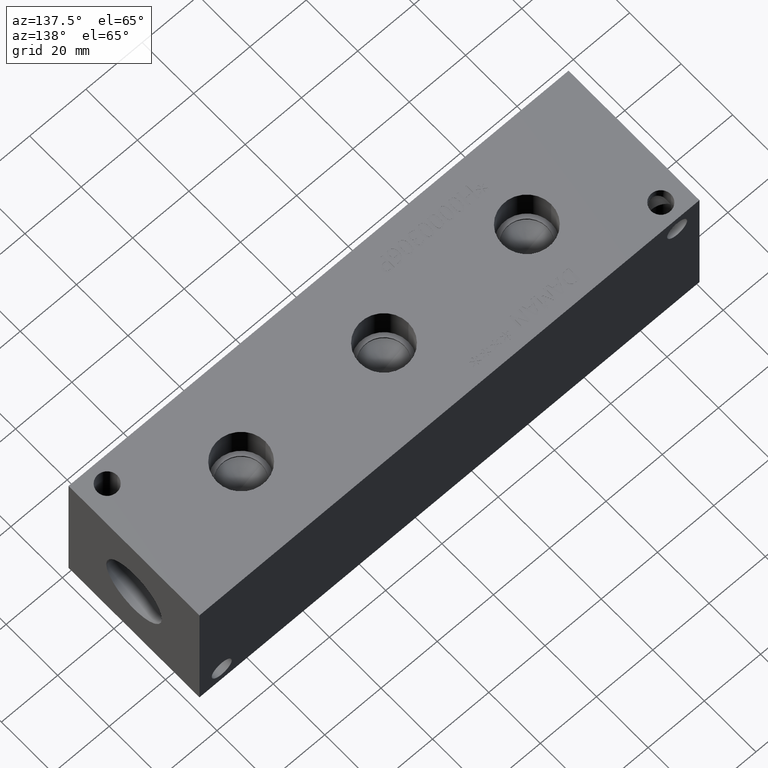
[diagram: clean part render]
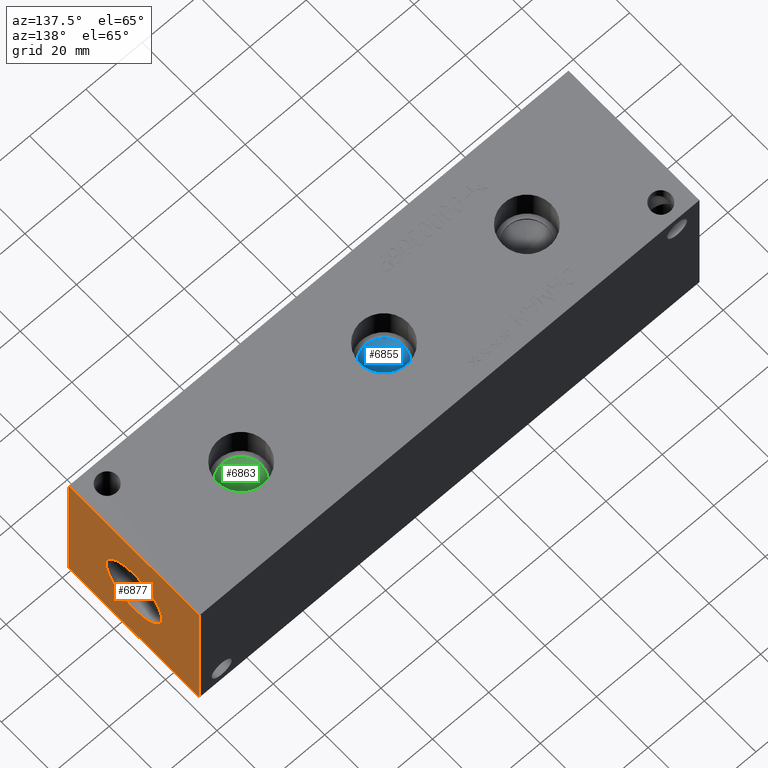
[diagram: same view with three faces highlighted in distinct colors, each labeled with its STEP entity id]
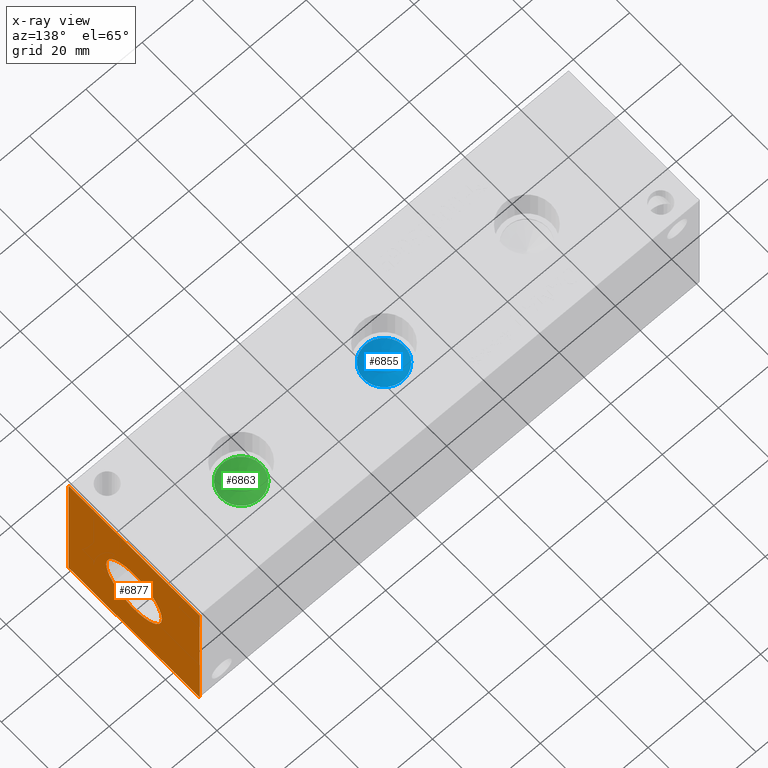
[diagram: x-ray of the same camera — body ghosted, the three highlighted faces saturated]
A machine part, auxiliary view with three faces highlighted in distinct colors.
The next image is the same camera in x-ray (body ghosted, the three faces saturated) — at least one of them is partly hidden behind the body in this view.
Their STEP definitions:

[orange] entity #6877 — the highlighted planar face has unit normal (1, 0, 0).
#83=CIRCLE('',#7164,10.795);
#84=CIRCLE('',#7165,10.795);
#134=FACE_BOUND('',#1085,.T.);
#346=PLANE('',#7180);
#694=FACE_OUTER_BOUND('',#1084,.T.);
#1084=EDGE_LOOP('',(#6091,#6092,#6093,#6094));
#1085=EDGE_LOOP('',(#6095,#6096));
#1344=LINE('',#10744,#2006);
#1751=LINE('',#11827,#2413);
#1752=LINE('',#11830,#2414);
#1753=LINE('',#11831,#2415);
#2006=VECTOR('',#7555,10.);
#2413=VECTOR('',#8414,10.);
#2414=VECTOR('',#8417,10.);
#2415=VECTOR('',#8418,10.);
#2954=VERTEX_POINT('',#10741);
#2955=VERTEX_POINT('',#10743);
#3265=VERTEX_POINT('',#11789);
#3266=VERTEX_POINT('',#11790);
#3277=VERTEX_POINT('',#11825);
#3278=VERTEX_POINT('',#11829);
#3742=EDGE_CURVE('',#2954,#2955,#1344,.T.);
#4202=EDGE_CURVE('',#3265,#3266,#83,.T.);
#4203=EDGE_CURVE('',#3266,#3265,#84,.T.);
#4220=EDGE_CURVE('',#3277,#2955,#1751,.T.);
#4221=EDGE_CURVE('',#3278,#3277,#1752,.T.);
#4222=EDGE_CURVE('',#3278,#2954,#1753,.T.);
#6091=ORIENTED_EDGE('',*,*,#4221,.T.);
#6092=ORIENTED_EDGE('',*,*,#4220,.T.);
#6093=ORIENTED_EDGE('',*,*,#3742,.F.);
#6094=ORIENTED_EDGE('',*,*,#4222,.F.);
#6095=ORIENTED_EDGE('',*,*,#4202,.T.);
#6096=ORIENTED_EDGE('',*,*,#4203,.T.);
#6877=ADVANCED_FACE('',(#694,#134),#346,.T.);
#7164=AXIS2_PLACEMENT_3D('',#11791,#8373,#8374);
#7165=AXIS2_PLACEMENT_3D('',#11792,#8375,#8376);
#7180=AXIS2_PLACEMENT_3D('',#11828,#8415,#8416);
#7555=DIRECTION('',(0.,1.,0.));
#8373=DIRECTION('center_axis',(-1.,0.,0.));
#8374=DIRECTION('ref_axis',(0.,1.,0.));
#8375=DIRECTION('center_axis',(-1.,0.,0.));
#8376=DIRECTION('ref_axis',(0.,1.,0.));
#8414=DIRECTION('',(0.,0.,1.));
#8415=DIRECTION('center_axis',(1.,0.,0.));
#8416=DIRECTION('ref_axis',(0.,1.,0.));
#8417=DIRECTION('',(0.,1.,0.));
#8418=DIRECTION('',(0.,0.,1.));
#10741=CARTESIAN_POINT('',(177.8,0.,50.8));
#10743=CARTESIAN_POINT('',(177.8,50.8,50.8));
#10744=CARTESIAN_POINT('',(177.8,0.,50.8));
#11789=CARTESIAN_POINT('',(177.8,36.195,25.4));
#11790=CARTESIAN_POINT('',(177.8,14.605,25.4));
#11791=CARTESIAN_POINT('Origin',(177.8,25.4,25.4));
#11792=CARTESIAN_POINT('Origin',(177.8,25.4,25.4));
#11825=CARTESIAN_POINT('',(177.8,50.8,0.));
#11827=CARTESIAN_POINT('',(177.8,50.8,0.));
#11828=CARTESIAN_POINT('Origin',(177.8,0.,0.));
#11829=CARTESIAN_POINT('',(177.8,0.,0.));
#11830=CARTESIAN_POINT('',(177.8,0.,0.));
#11831=CARTESIAN_POINT('',(177.8,0.,0.));

[blue] entity #6855 — the highlighted conical surface has half-angle 60 deg.
#14=CONICAL_SURFACE('',#7129,3.57505,1.0471975511966);
#63=CIRCLE('',#7130,7.1501);
#64=CIRCLE('',#7131,7.1501);
#672=FACE_OUTER_BOUND('',#1054,.T.);
#1054=EDGE_LOOP('',(#5989,#5990,#5991,#5992));
#1732=LINE('',#11725,#2394);
#2394=VECTOR('',#8297,3.57505);
#3241=VERTEX_POINT('',#11721);
#3242=VERTEX_POINT('',#11722);
#3243=VERTEX_POINT('',#11724);
#4172=EDGE_CURVE('',#3241,#3242,#63,.T.);
#4173=EDGE_CURVE('',#3242,#3243,#1732,.T.);
#4174=EDGE_CURVE('',#3242,#3241,#64,.T.);
#5989=ORIENTED_EDGE('',*,*,#4172,.T.);
#5990=ORIENTED_EDGE('',*,*,#4173,.T.);
#5991=ORIENTED_EDGE('',*,*,#4173,.F.);
#5992=ORIENTED_EDGE('',*,*,#4174,.T.);
#6855=ADVANCED_FACE('',(#672),#14,.F.);
#7129=AXIS2_PLACEMENT_3D('',#11720,#8293,#8294);
#7130=AXIS2_PLACEMENT_3D('',#11723,#8295,#8296);
#7131=AXIS2_PLACEMENT_3D('',#11726,#8298,#8299);
#8293=DIRECTION('center_axis',(0.,0.,1.));
#8294=DIRECTION('ref_axis',(1.,0.,0.));
#8295=DIRECTION('center_axis',(0.,0.,1.));
#8296=DIRECTION('ref_axis',(1.,0.,0.));
#8297=DIRECTION('',(0.866025403784439,1.06057523872491E-16,-0.5));
#8298=DIRECTION('center_axis',(0.,0.,1.));
#8299=DIRECTION('ref_axis',(1.,0.,0.));
#11720=CARTESIAN_POINT('Origin',(88.9,25.4,36.5883339201336));
#11721=CARTESIAN_POINT('',(96.0501,25.4,38.65239));
#11722=CARTESIAN_POINT('',(81.7499,25.4,38.65239));
#11723=CARTESIAN_POINT('Origin',(88.9,25.4,38.65239));
#11724=CARTESIAN_POINT('',(88.9,25.4,34.5242778402673));
#11725=CARTESIAN_POINT('',(85.32495,25.4,36.5883339201336));
#11726=CARTESIAN_POINT('Origin',(88.9,25.4,38.65239));

[green] entity #6863 — the highlighted conical surface has half-angle 60 deg.
#16=CONICAL_SURFACE('',#7147,3.57505,1.0471975511966);
#73=CIRCLE('',#7148,7.1501);
#74=CIRCLE('',#7149,7.1501);
#680=FACE_OUTER_BOUND('',#1064,.T.);
#1064=EDGE_LOOP('',(#6025,#6026,#6027,#6028));
#1738=LINE('',#11761,#2400);
#2400=VECTOR('',#8339,3.57505);
#3253=VERTEX_POINT('',#11757);
#3254=VERTEX_POINT('',#11758);
#3255=VERTEX_POINT('',#11760);
#4188=EDGE_CURVE('',#3253,#3254,#73,.T.);
#4189=EDGE_CURVE('',#3254,#3255,#1738,.T.);
#4190=EDGE_CURVE('',#3254,#3253,#74,.T.);
#6025=ORIENTED_EDGE('',*,*,#4188,.T.);
#6026=ORIENTED_EDGE('',*,*,#4189,.T.);
#6027=ORIENTED_EDGE('',*,*,#4189,.F.);
#6028=ORIENTED_EDGE('',*,*,#4190,.T.);
#6863=ADVANCED_FACE('',(#680),#16,.F.);
#7147=AXIS2_PLACEMENT_3D('',#11756,#8335,#8336);
#7148=AXIS2_PLACEMENT_3D('',#11759,#8337,#8338);
#7149=AXIS2_PLACEMENT_3D('',#11762,#8340,#8341);
#8335=DIRECTION('center_axis',(0.,0.,1.));
#8336=DIRECTION('ref_axis',(1.,0.,0.));
#8337=DIRECTION('center_axis',(0.,0.,1.));
#8338=DIRECTION('ref_axis',(1.,0.,0.));
#8339=DIRECTION('',(0.866025403784439,1.06057523872491E-16,-0.5));
#8340=DIRECTION('center_axis',(0.,0.,1.));
#8341=DIRECTION('ref_axis',(1.,0.,0.));
#11756=CARTESIAN_POINT('Origin',(139.7,25.4,36.5883339201336));
#11757=CARTESIAN_POINT('',(146.8501,25.4,38.65239));
#11758=CARTESIAN_POINT('',(132.5499,25.4,38.65239));
#11759=CARTESIAN_POINT('Origin',(139.7,25.4,38.65239));
#11760=CARTESIAN_POINT('',(139.7,25.4,34.5242778402673));
#11761=CARTESIAN_POINT('',(136.12495,25.4,36.5883339201336));
#11762=CARTESIAN_POINT('Origin',(139.7,25.4,38.65239));